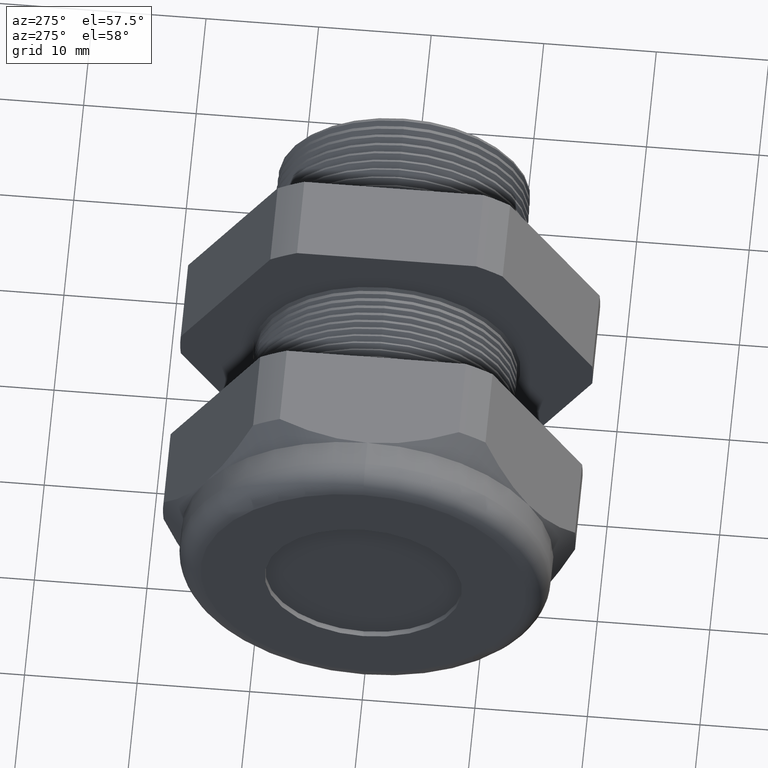
[diagram: clean part render]
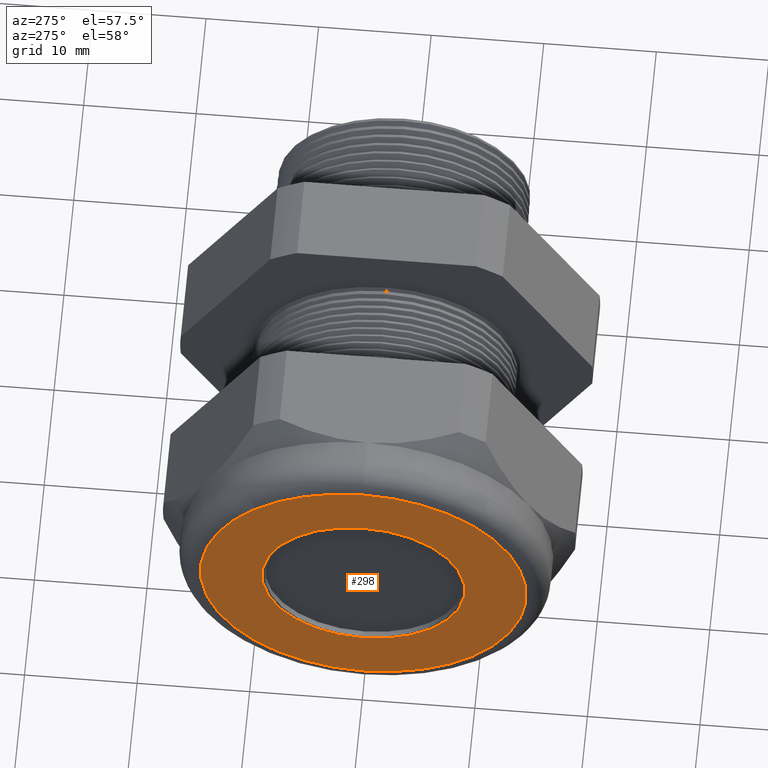
[diagram: same view with one face highlighted and labeled with its STEP entity id]
A machine part, auxiliary view. The second image highlights one B-rep face of the part: STEP entity #298.
In plain terms, the highlighted planar face has unit normal (-1, 0, 0).
Its self-contained STEP definition (entity closure, byte-faithful):
#281 = ORIENTED_EDGE ( 'NONE', *, *, #497, .T. ) ;
#298 = ADVANCED_FACE ( 'NONE', ( #3161, #3160 ), #3159, .T. ) ;
#299 = EDGE_LOOP ( 'NONE', ( #300, #301 ) ) ;
#300 = ORIENTED_EDGE ( 'NONE', *, *, #5042, .T. ) ;
#301 = ORIENTED_EDGE ( 'NONE', *, *, #302, .T. ) ;
#302 = EDGE_CURVE ( 'NONE', #5056, #5029, #3154, .T. ) ;
#303 = EDGE_LOOP ( 'NONE', ( #304, #281 ) ) ;
#304 = ORIENTED_EDGE ( 'NONE', *, *, #305, .T. ) ;
#305 = EDGE_CURVE ( 'NONE', #500, #498, #3146, .T. ) ;
#497 = EDGE_CURVE ( 'NONE', #498, #500, #3512, .T. ) ;
#498 = VERTEX_POINT ( 'NONE', #3508 ) ;
#500 = VERTEX_POINT ( 'NONE', #3507 ) ;
#1348 = DIRECTION ( 'NONE',  ( 0.0000000000000000000, 0.0000000000000000000, 1.000000000000000000 ) ) ;
#1349 = DIRECTION ( 'NONE',  ( -1.000000000000000000, 0.0000000000000000000, 0.0000000000000000000 ) ) ;
#1350 = CARTESIAN_POINT ( 'NONE',  ( -1.529999999999999800, 0.0000000000000000000, 0.0000000000000000000 ) ) ;
#1351 = AXIS2_PLACEMENT_3D ( 'NONE', #1350, #1349, #1348 ) ;
#1352 = CIRCLE ( 'NONE', #1351, 0.5699999999999999500 ) ;
#1371 = CARTESIAN_POINT ( 'NONE',  ( -1.529999999999999800, 0.0000000000000000000, 0.5699999999999999500 ) ) ;
#1431 = CARTESIAN_POINT ( 'NONE',  ( -1.529999999999999800, 7.470345474798854000E-017, -0.5699999999999999500 ) ) ;
#2897 = DIRECTION ( 'NONE',  ( 0.0000000000000000000, 0.0000000000000000000, -1.000000000000000000 ) ) ;
#3143 = DIRECTION ( 'NONE',  ( 1.000000000000000000, 0.0000000000000000000, 0.0000000000000000000 ) ) ;
#3144 = CARTESIAN_POINT ( 'NONE',  ( -1.529999999999999800, 0.0000000000000000000, 0.0000000000000000000 ) ) ;
#3145 = AXIS2_PLACEMENT_3D ( 'NONE', #3144, #3143, #2897 ) ;
#3146 = CIRCLE ( 'NONE', #3145, 0.3549999999999999800 ) ;
#3150 = DIRECTION ( 'NONE',  ( 0.0000000000000000000, 0.0000000000000000000, 1.000000000000000000 ) ) ;
#3151 = DIRECTION ( 'NONE',  ( -1.000000000000000000, 0.0000000000000000000, 0.0000000000000000000 ) ) ;
#3152 = CARTESIAN_POINT ( 'NONE',  ( -1.529999999999999800, 0.0000000000000000000, 0.0000000000000000000 ) ) ;
#3153 = AXIS2_PLACEMENT_3D ( 'NONE', #3152, #3151, #3150 ) ;
#3154 = CIRCLE ( 'NONE', #3153, 0.5699999999999999500 ) ;
#3155 = DIRECTION ( 'NONE',  ( 0.0000000000000000000, 0.0000000000000000000, 1.000000000000000000 ) ) ;
#3156 = DIRECTION ( 'NONE',  ( -1.000000000000000000, 0.0000000000000000000, 0.0000000000000000000 ) ) ;
#3157 = CARTESIAN_POINT ( 'NONE',  ( -1.529999999999999800, 0.6499999999999999100, 0.0000000000000000000 ) ) ;
#3158 = AXIS2_PLACEMENT_3D ( 'NONE', #3157, #3156, #3155 ) ;
#3159 = PLANE ( 'NONE',  #3158 ) ;
#3160 = FACE_BOUND ( 'NONE', #303, .T. ) ;
#3161 = FACE_OUTER_BOUND ( 'NONE', #299, .T. ) ;
#3507 = CARTESIAN_POINT ( 'NONE',  ( -1.529999999999999800, 0.0000000000000000000, -0.3549999999999999800 ) ) ;
#3508 = CARTESIAN_POINT ( 'NONE',  ( -1.529999999999999800, 4.347496136973103500E-017, 0.3549999999999999800 ) ) ;
#3509 = DIRECTION ( 'NONE',  ( 0.0000000000000000000, 0.0000000000000000000, -1.000000000000000000 ) ) ;
#3510 = DIRECTION ( 'NONE',  ( 1.000000000000000000, 0.0000000000000000000, 0.0000000000000000000 ) ) ;
#3511 = AXIS2_PLACEMENT_3D ( 'NONE', #3517, #3510, #3509 ) ;
#3512 = CIRCLE ( 'NONE', #3511, 0.3549999999999999800 ) ;
#3517 = CARTESIAN_POINT ( 'NONE',  ( -1.529999999999999800, 0.0000000000000000000, 0.0000000000000000000 ) ) ;
#5029 = VERTEX_POINT ( 'NONE', #1371 ) ;
#5042 = EDGE_CURVE ( 'NONE', #5029, #5056, #1352, .T. ) ;
#5056 = VERTEX_POINT ( 'NONE', #1431 ) ;